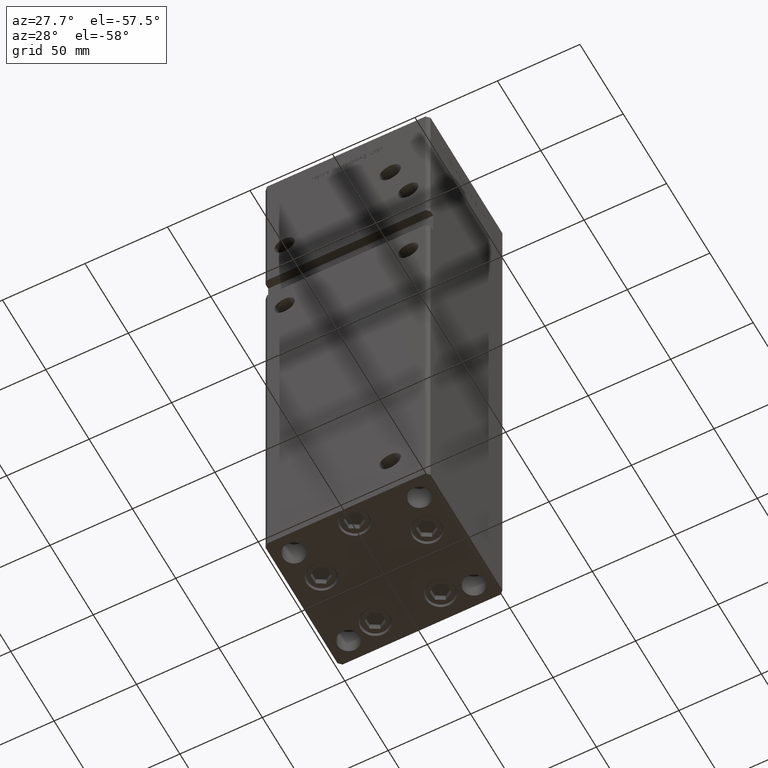
[diagram: clean part render]
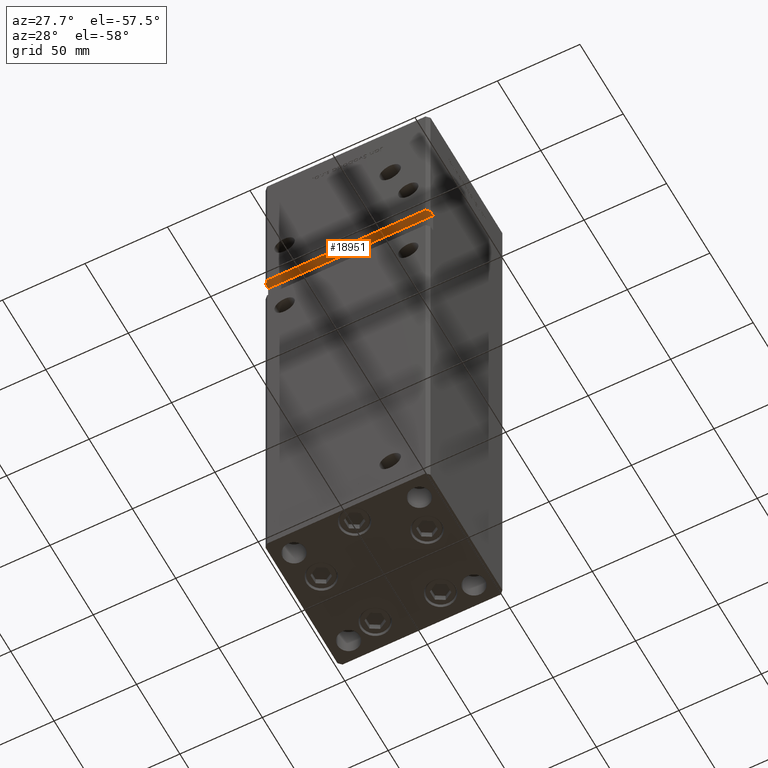
[diagram: same view with one face highlighted and labeled with its STEP entity id]
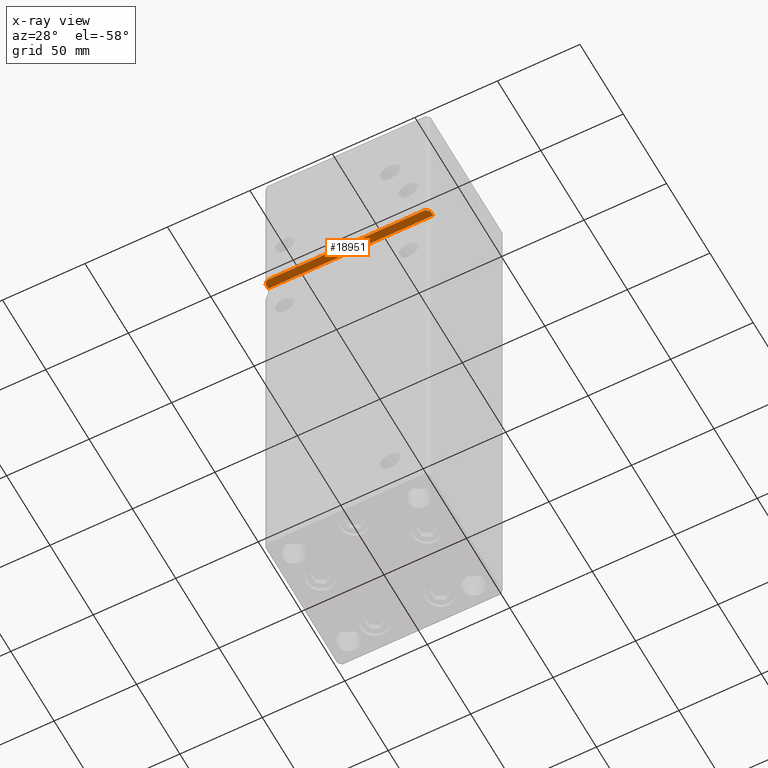
[diagram: x-ray of the same camera — body ghosted, the highlighted face saturated]
A machine part, auxiliary view. The second image highlights one B-rep face of the part: STEP entity #18951.
The next image is the same camera in x-ray: the body ghosted, the highlighted face saturated — about 0% of this face is hidden behind the body in this view.
In plain terms, the highlighted planar face has unit normal (0, 0, 1).
Its self-contained STEP definition (entity closure, byte-faithful):
#1533 = LINE ( 'NONE', #17924, #7473 ) ;
#1596 = LINE ( 'NONE', #14242, #15369 ) ;
#2031 = VERTEX_POINT ( 'NONE', #17767 ) ;
#3050 = AXIS2_PLACEMENT_3D ( 'NONE', #50351, #25367, #41763 ) ;
#3236 = DIRECTION ( 'NONE',  ( -0.000000000000000000, -1.000000000000000000, -0.000000000000000000 ) ) ;
#3320 = EDGE_CURVE ( 'NONE', #2031, #45394, #19280, .T. ) ;
#4371 = VECTOR ( 'NONE', #13912, 1000.000000000000114 ) ;
#4459 = CARTESIAN_POINT ( 'NONE',  ( -49.99999999999998579, -38.50000000000000000, 244.0000000000000000 ) ) ;
#5102 = ORIENTED_EDGE ( 'NONE', *, *, #3320, .T. ) ;
#7473 = VECTOR ( 'NONE', #14178, 1000.000000000000114 ) ;
#7743 = CARTESIAN_POINT ( 'NONE',  ( 49.99999999999998579, -41.49999999999999289, 244.0000000000000000 ) ) ;
#8507 = LINE ( 'NONE', #4459, #32581 ) ;
#12532 = DIRECTION ( 'NONE',  ( -0.000000000000000000, -1.000000000000000000, -0.000000000000000000 ) ) ;
#13912 = DIRECTION ( 'NONE',  ( 0.7071067811865474617, -0.7071067811865474617, 0.000000000000000000 ) ) ;
#14178 = DIRECTION ( 'NONE',  ( -0.7071067811865474617, -0.7071067811865474617, 0.000000000000000000 ) ) ;
#14242 = CARTESIAN_POINT ( 'NONE',  ( -49.99999999999998579, -38.50000000000000000, 244.0000000000000000 ) ) ;
#15050 = ORIENTED_EDGE ( 'NONE', *, *, #43053, .F. ) ;
#15369 = VECTOR ( 'NONE', #30345, 1000.000000000000000 ) ;
#15793 = DIRECTION ( 'NONE',  ( -1.000000000000000000, -0.000000000000000000, -0.000000000000000000 ) ) ;
#17520 = CARTESIAN_POINT ( 'NONE',  ( -47.99999999999998579, -43.50000000000000000, 244.0000000000000000 ) ) ;
#17767 = CARTESIAN_POINT ( 'NONE',  ( 47.99999999999998579, -43.50000000000000000, 244.0000000000000000 ) ) ;
#17924 = CARTESIAN_POINT ( 'NONE',  ( 49.99999999999998579, -41.49999999999999289, 244.0000000000000000 ) ) ;
#18691 = LINE ( 'NONE', #19227, #4371 ) ;
#18951 = ADVANCED_FACE ( 'NONE', ( #24385 ), #53131, .F. ) ;
#19227 = CARTESIAN_POINT ( 'NONE',  ( -49.99999999999998579, -41.49999999999999289, 244.0000000000000000 ) ) ;
#19280 = LINE ( 'NONE', #35413, #52635 ) ;
#19414 = EDGE_CURVE ( 'NONE', #26932, #2031, #1533, .T. ) ;
#21207 = VERTEX_POINT ( 'NONE', #48515 ) ;
#22255 = VECTOR ( 'NONE', #3236, 1000.000000000000000 ) ;
#23238 = VERTEX_POINT ( 'NONE', #42904 ) ;
#24323 = CARTESIAN_POINT ( 'NONE',  ( -49.99999999999998579, -41.49999999999999289, 244.0000000000000000 ) ) ;
#24385 = FACE_OUTER_BOUND ( 'NONE', #38769, .T. ) ;
#25367 = DIRECTION ( 'NONE',  ( 0.000000000000000000, 0.000000000000000000, 1.000000000000000000 ) ) ;
#26932 = VERTEX_POINT ( 'NONE', #7743 ) ;
#27678 = LINE ( 'NONE', #52139, #22255 ) ;
#30345 = DIRECTION ( 'NONE',  ( -1.000000000000000000, -0.000000000000000000, -0.000000000000000000 ) ) ;
#31508 = EDGE_CURVE ( 'NONE', #21207, #34629, #8507, .T. ) ;
#32581 = VECTOR ( 'NONE', #12532, 1000.000000000000000 ) ;
#33818 = ORIENTED_EDGE ( 'NONE', *, *, #19414, .T. ) ;
#34629 = VERTEX_POINT ( 'NONE', #24323 ) ;
#35413 = CARTESIAN_POINT ( 'NONE',  ( -49.99999999999998579, -43.50000000000000000, 244.0000000000000000 ) ) ;
#38396 = ORIENTED_EDGE ( 'NONE', *, *, #42862, .T. ) ;
#38769 = EDGE_LOOP ( 'NONE', ( #45136, #15050, #38396, #33818, #5102, #41768 ) ) ;
#41763 = DIRECTION ( 'NONE',  ( 1.000000000000000000, 0.000000000000000000, -0.000000000000000000 ) ) ;
#41768 = ORIENTED_EDGE ( 'NONE', *, *, #51520, .F. ) ;
#42862 = EDGE_CURVE ( 'NONE', #23238, #26932, #27678, .T. ) ;
#42904 = CARTESIAN_POINT ( 'NONE',  ( 49.99999999999998579, -38.50000000000000000, 244.0000000000000000 ) ) ;
#43053 = EDGE_CURVE ( 'NONE', #23238, #21207, #1596, .T. ) ;
#45136 = ORIENTED_EDGE ( 'NONE', *, *, #31508, .F. ) ;
#45394 = VERTEX_POINT ( 'NONE', #17520 ) ;
#48515 = CARTESIAN_POINT ( 'NONE',  ( -49.99999999999998579, -38.50000000000000000, 244.0000000000000000 ) ) ;
#50351 = CARTESIAN_POINT ( 'NONE',  ( -49.99999999999998579, -38.50000000000000000, 244.0000000000000000 ) ) ;
#51520 = EDGE_CURVE ( 'NONE', #34629, #45394, #18691, .T. ) ;
#52139 = CARTESIAN_POINT ( 'NONE',  ( 49.99999999999998579, -38.50000000000000000, 244.0000000000000000 ) ) ;
#52635 = VECTOR ( 'NONE', #15793, 1000.000000000000000 ) ;
#53131 = PLANE ( 'NONE',  #3050 ) ;